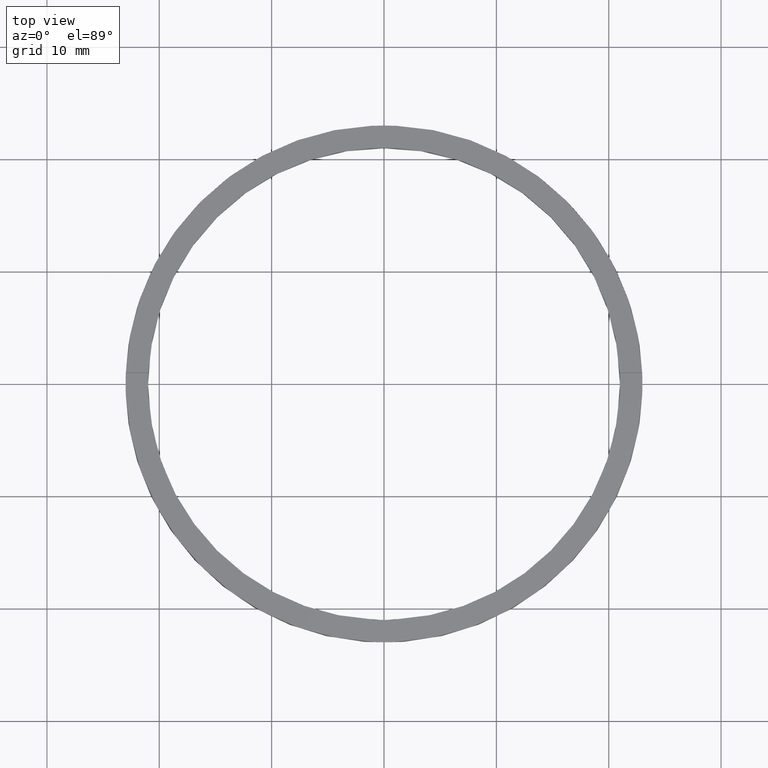
[diagram: clean part render]
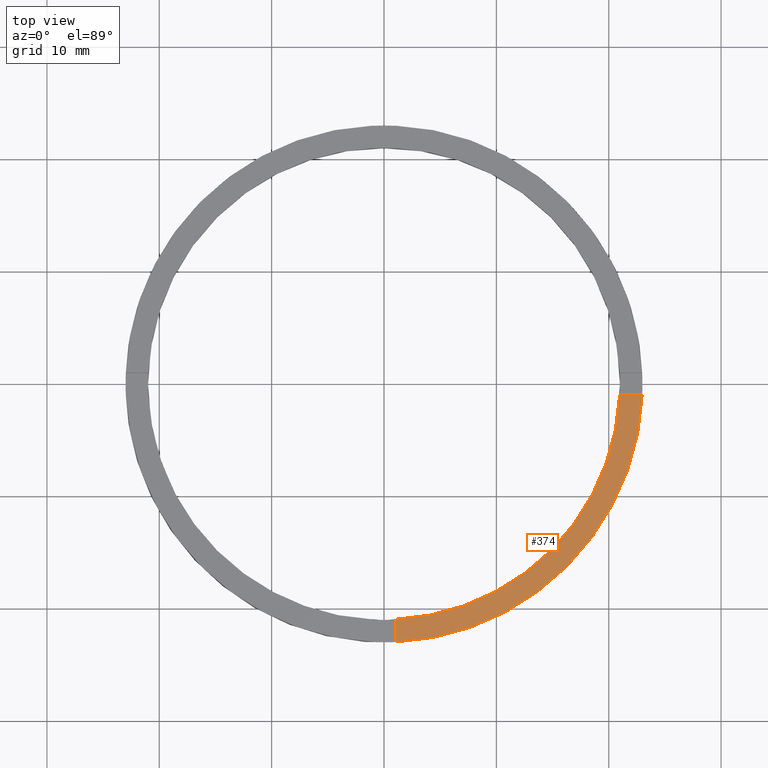
[diagram: same view with one face highlighted and labeled with its STEP entity id]
A machine part, top view. The second image highlights one B-rep face of the part: STEP entity #374.
In plain terms, the highlighted planar face has unit normal (0, 0, 1).
Its self-contained STEP definition (entity closure, byte-faithful):
#14 = VERTEX_POINT ( 'NONE', #88 ) ;
#23 = EDGE_CURVE ( 'NONE', #231, #578, #102, .T. ) ;
#33 = DIRECTION ( 'NONE',  ( 0.000000000000000000, 0.000000000000000000, 1.000000000000000000 ) ) ;
#40 = CARTESIAN_POINT ( 'NONE',  ( 0.000000000000000000, 0.000000000000000000, 2.500000000000000000 ) ) ;
#88 = CARTESIAN_POINT ( 'NONE',  ( 0.9999999999998391287, -22.97825058615211802, 2.500000000000000000 ) ) ;
#92 = CARTESIAN_POINT ( 'NONE',  ( 0.9999999999998375744, -13.00000000000017941, 2.500000000000000000 ) ) ;
#102 = LINE ( 'NONE', #773, #396 ) ;
#106 = ORIENTED_EDGE ( 'NONE', *, *, #468, .F. ) ;
#153 = AXIS2_PLACEMENT_3D ( 'NONE', #217, #532, #406 ) ;
#185 = LINE ( 'NONE', #92, #717 ) ;
#216 = DIRECTION ( 'NONE',  ( 1.000000000000000000, 0.000000000000000000, 0.000000000000000000 ) ) ;
#217 = CARTESIAN_POINT ( 'NONE',  ( 0.000000000000000000, 0.000000000000000000, 2.500000000000000000 ) ) ;
#218 = DIRECTION ( 'NONE',  ( 1.000000000000000000, 4.336808689942018352E-17, 0.000000000000000000 ) ) ;
#221 = EDGE_CURVE ( 'NONE', #14, #578, #662, .T. ) ;
#225 = AXIS2_PLACEMENT_3D ( 'NONE', #630, #33, #216 ) ;
#231 = VERTEX_POINT ( 'NONE', #648 ) ;
#241 = DIRECTION ( 'NONE',  ( -1.517883041479706208E-16, 1.000000000000000000, -0.000000000000000000 ) ) ;
#265 = VERTEX_POINT ( 'NONE', #730 ) ;
#270 = EDGE_LOOP ( 'NONE', ( #651, #106, #645, #466 ) ) ;
#374 = ADVANCED_FACE ( 'NONE', ( #404 ), #476, .T. ) ;
#396 = VECTOR ( 'NONE', #218, 1000.000000000000000 ) ;
#404 = FACE_OUTER_BOUND ( 'NONE', #270, .T. ) ;
#406 = DIRECTION ( 'NONE',  ( 1.000000000000000000, 0.000000000000000000, 0.000000000000000000 ) ) ;
#417 = CARTESIAN_POINT ( 'NONE',  ( 22.97825058615210381, -1.000000000000157874, 2.500000000000000000 ) ) ;
#466 = ORIENTED_EDGE ( 'NONE', *, *, #221, .T. ) ;
#468 = EDGE_CURVE ( 'NONE', #265, #231, #681, .T. ) ;
#476 = PLANE ( 'NONE',  #741 ) ;
#515 = DIRECTION ( 'NONE',  ( 1.000000000000000000, 0.000000000000000000, -0.000000000000000000 ) ) ;
#532 = DIRECTION ( 'NONE',  ( 0.000000000000000000, 0.000000000000000000, 1.000000000000000000 ) ) ;
#578 = VERTEX_POINT ( 'NONE', #417 ) ;
#612 = EDGE_CURVE ( 'NONE', #14, #265, #185, .T. ) ;
#630 = CARTESIAN_POINT ( 'NONE',  ( 0.000000000000000000, 0.000000000000000000, 2.500000000000000000 ) ) ;
#645 = ORIENTED_EDGE ( 'NONE', *, *, #612, .F. ) ;
#648 = CARTESIAN_POINT ( 'NONE',  ( 20.97617696340302373, -1.000000000000158096, 2.500000000000000000 ) ) ;
#651 = ORIENTED_EDGE ( 'NONE', *, *, #23, .F. ) ;
#662 = CIRCLE ( 'NONE', #153, 23.00000000000000000 ) ;
#681 = CIRCLE ( 'NONE', #225, 21.00000000000000000 ) ;
#717 = VECTOR ( 'NONE', #241, 1000.000000000000000 ) ;
#719 = DIRECTION ( 'NONE',  ( 0.000000000000000000, 0.000000000000000000, 1.000000000000000000 ) ) ;
#730 = CARTESIAN_POINT ( 'NONE',  ( 0.9999999999998389066, -20.97617696340304150, 2.500000000000000000 ) ) ;
#741 = AXIS2_PLACEMENT_3D ( 'NONE', #40, #719, #515 ) ;
#773 = CARTESIAN_POINT ( 'NONE',  ( 12.99999999999999467, -1.000000000000158318, 2.500000000000000000 ) ) ;